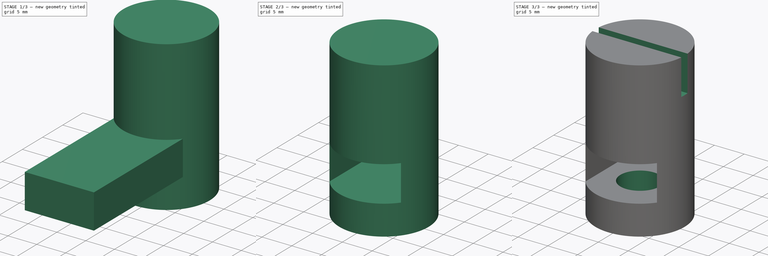
[diagram: build sequence overview — one tinted view per stage of 3, left to right]
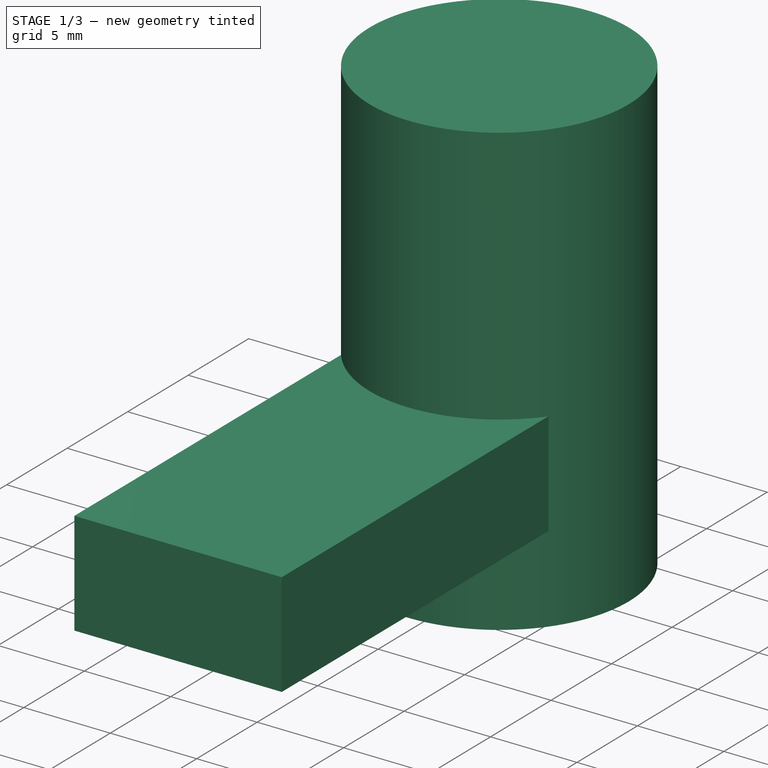
[diagram: stage 1 of 3 — iso view after this stage's code; geometry added in this stage tinted green]
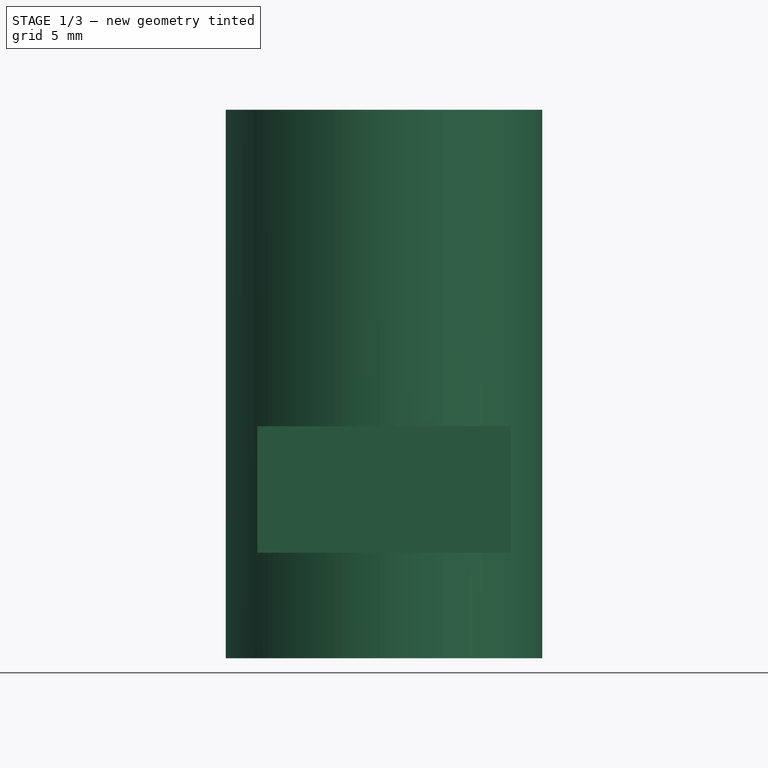
[diagram: stage 1 of 3 — front view after this stage's code; geometry added in this stage tinted green]
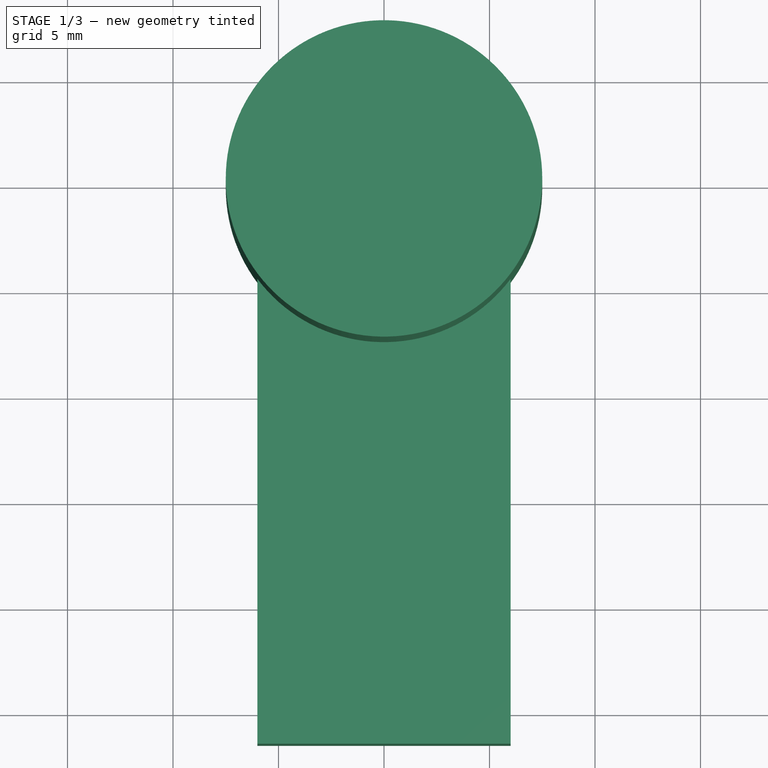
[diagram: stage 1 of 3 — top view after this stage's code; geometry added in this stage tinted green]
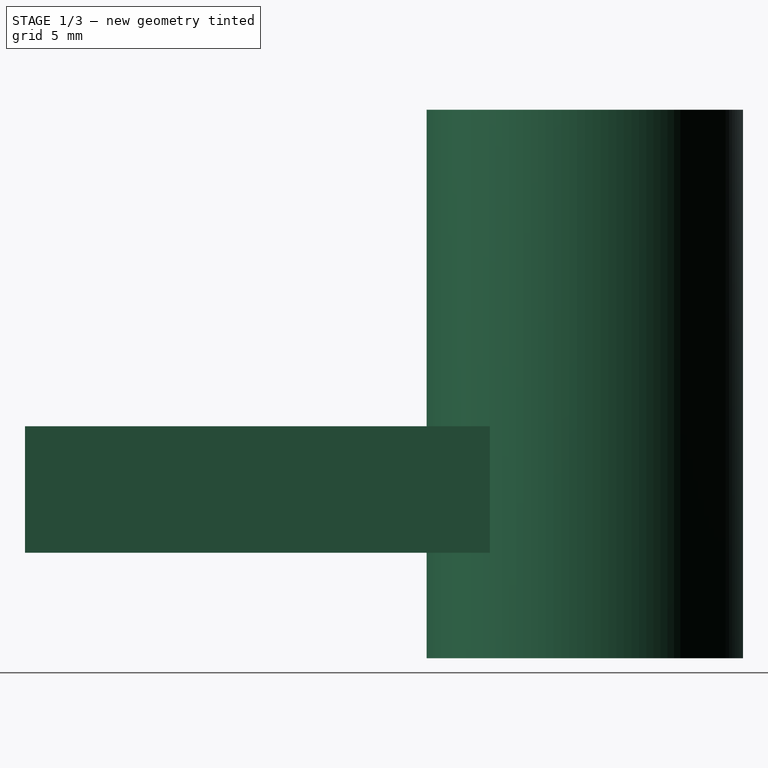
[diagram: stage 1 of 3 — right view after this stage's code; geometry added in this stage tinted green]
FCSTD DOCUMENT  (FreeCAD 0.20R29410 (Git))
Label: Post
License: All rights reserved
LicenseURL: http://en.wikipedia.org/wiki/All_rights_reserved
objects: Sketcher::SketchObject×5, PartDesign::Pad×2, PartDesign::Body×2, PartDesign::Boolean×1, PartDesign::Pocket×1, PartDesign::Hole×1
note: 16 computed .brp shape members not serialized (recipe doc carries the construction recipe); baked Part::Feature solids carry a one-line shape summary decoded from their .brp

FEATURE [Sketcher::SketchObject] Sketch
  FullyConstrained = true
  MapMode = 5
  Support = -> [XY_Plane]
  sketch-geometry (1):
    g0: Circle CenterX=0 CenterY=0 CenterZ=0 NormalX=0 NormalY=0 NormalZ=1 AngleXU=0 Radius=7.5
  constraints (2):
    c: Coincident(g0,g-1)
    c: Diameter(g0) = 15
FEATURE [PartDesign::Pad] Pad
  Direction = (0,0,1)
  Length = 26
  Length2 = 10
  Profile = -> Sketch
  ReferenceAxis = -> Sketch [N_Axis]
  Refine = true
  Type = 0
FEATURE [Sketcher::SketchObject] Sketch001
  FullyConstrained = false
  MapMode = 5
  Placement = pos=(0,0,0) rot=(1,0,0;1.5708rad)
  Support = -> [XZ_Plane]
  sketch-geometry (11):
    g0: LineSegment StartX=0 StartY=0 StartZ=0 EndX=32.1972 EndY=0 EndZ=0
    g1: LineSegment StartX=32.1972 StartY=0 StartZ=0 EndX=32.1972 EndY=13 EndZ=0
    g2: LineSegment StartX=32.1972 StartY=13 StartZ=0 EndX=0 EndY=13 EndZ=0
    g3: LineSegment StartX=0 StartY=13 StartZ=0 EndX=0 EndY=0 EndZ=0
    g4: LineSegment StartX=-57.9469 StartY=36.85 StartZ=0 EndX=59.5862 EndY=36.85 EndZ=0
    g5: LineSegment StartX=15.3904 StartY=48 StartZ=0 EndX=15.3904 EndY=28 EndZ=0
    g6: LineSegment StartX=19.494 StartY=63 StartZ=0 EndX=19.494 EndY=28 EndZ=0
    g7: LineSegment StartX=11.6766 StartY=13 StartZ=0 EndX=22.6698 EndY=13 EndZ=0
    g8: LineSegment StartX=22.6698 StartY=13 StartZ=0 EndX=22.6698 EndY=33 EndZ=0
    g9: LineSegment StartX=22.6698 StartY=33 StartZ=0 EndX=11.6766 EndY=33 EndZ=0
    g10: LineSegment StartX=11.6766 StartY=33 StartZ=0 EndX=11.6766 EndY=13 EndZ=0
  constraints (28):
    c: Coincident(g0,g1)
    c: Coincident(g1,g2)
    c: Coincident(g2,g3)
    c: Coincident(g3,g0)
    c: Horizontal(g0)
    c: Horizontal(g2)
    c: Vertical(g1)
    c: Vertical(g3)
    c: Coincident(g0,g-1)
    c: Distance(g1) = 13
    c: Horizontal(g4)
    c: Distance(g4,g-1) = 36.85  'Beam Height'
    c: Vertical(g5)
    c: DistanceY(g5,g5) = 20
    c: Vertical(g6)
    c: DistanceY(g6,g6) = 35
    c: Coincident(g7,g8)
    c: Coincident(g8,g9)
    c: Coincident(g9,g10)
    c: Coincident(g10,g7)
    c: Horizontal(g7)
    c: Horizontal(g9)
    c: Vertical(g8)
    c: Vertical(g10)
    c: PointOnObject(g7,g2)
    c: DistanceY(g8,g8) = 20
    c: DistanceY(g5,g9) = 5
    c: DistanceY(g6,g8) = 5
FEATURE [Sketcher::SketchObject] Sketch002
  FullyConstrained = true
  MapMode = 5
  Placement = pos=(0,0,5) rot=(0,0,1;0rad)
  sketch-geometry (7):
    g0: LineSegment StartX=6 StartY=3.4641 StartZ=0 EndX=6 EndY=-26.5359 EndZ=0
    g1: LineSegment StartX=6 StartY=-26.5359 StartZ=0 EndX=-6 EndY=-26.5359 EndZ=0
    g2: LineSegment StartX=-6 StartY=-26.5359 StartZ=0 EndX=-6 EndY=3.4641 EndZ=0
    g3: LineSegment StartX=-6 StartY=3.4641 StartZ=0 EndX=0 EndY=6.9282 EndZ=0
    g4: LineSegment StartX=0 StartY=6.9282 StartZ=0 EndX=6 EndY=3.4641 EndZ=0
    g5: LineSegment StartX=6 StartY=-3.4641 StartZ=0 EndX=0 EndY=-6.9282 EndZ=0
    g6: LineSegment StartX=0 StartY=-6.9282 StartZ=0 EndX=-6 EndY=-3.4641 EndZ=0
  constraints (20):
    c: Vertical(g0)
    c: Coincident(g0,g1)
    c: Horizontal(g1)
    c: Coincident(g1,g2)
    c: Vertical(g2)
    c: Coincident(g2,g3)
    c: PointOnObject(g3,g-2)
    c: Coincident(g3,g4)
    c: Coincident(g4,g0)
    c: Angle(g3,g4) = 2.0944
    c: Symmetric(g2,g0,g-2)
    c: DistanceX(g1,g1) = 12
    c: PointOnObject(g5,g0)
    c: Coincident(g6,g5)
    c: PointOnObject(g6,g2)
    c: Angle(g5,g6) = 2.0944
    c: Parallel(g3,g5)
    c: Distance(g3,g5) = 12
    c: Symmetric(g3,g5,g-1)
    c: DistanceY(g0,g0) = 30
FEATURE [PartDesign::Pad] Pad001
  Direction = (0,0,1)
  Length = 6
  Length2 = 10
  Placement = pos=(0,0,5) rot=(0,0,1;0rad)
  Profile = -> Sketch002
  ReferenceAxis = -> Sketch002 [N_Axis]
  Refine = true
  Type = 0
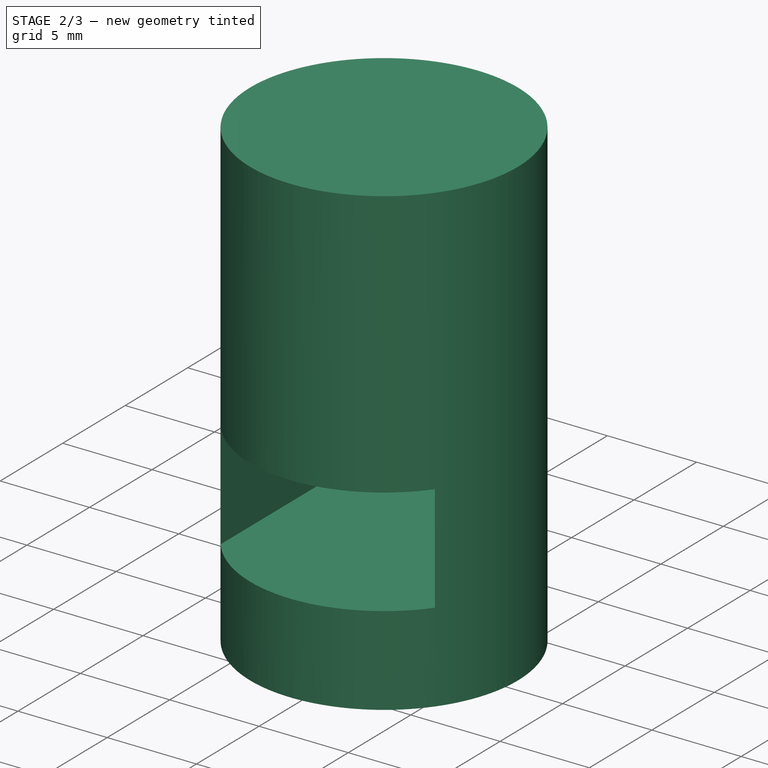
[diagram: stage 2 of 3 — iso view after this stage's code; geometry added in this stage tinted green]
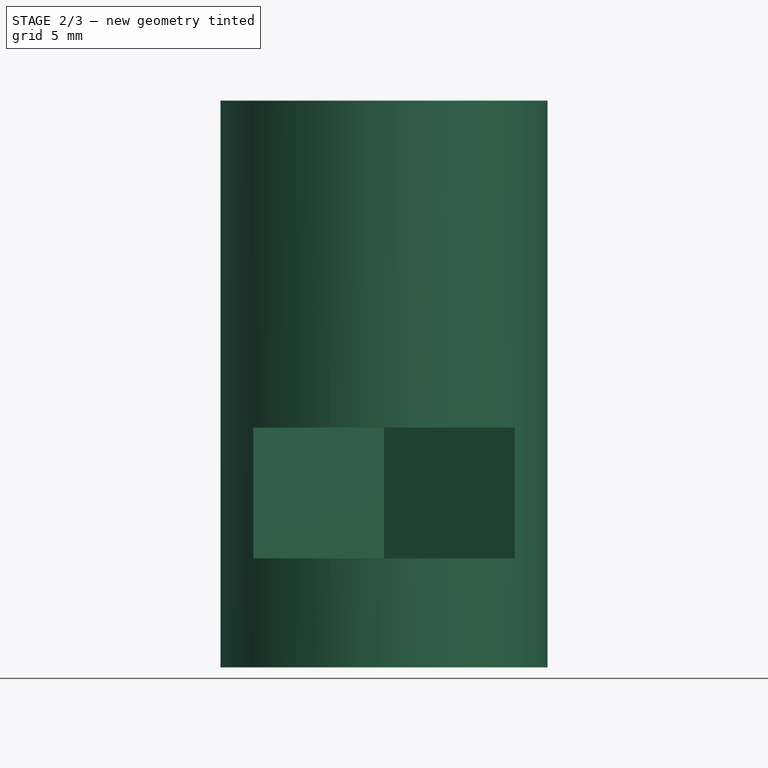
[diagram: stage 2 of 3 — front view after this stage's code; geometry added in this stage tinted green]
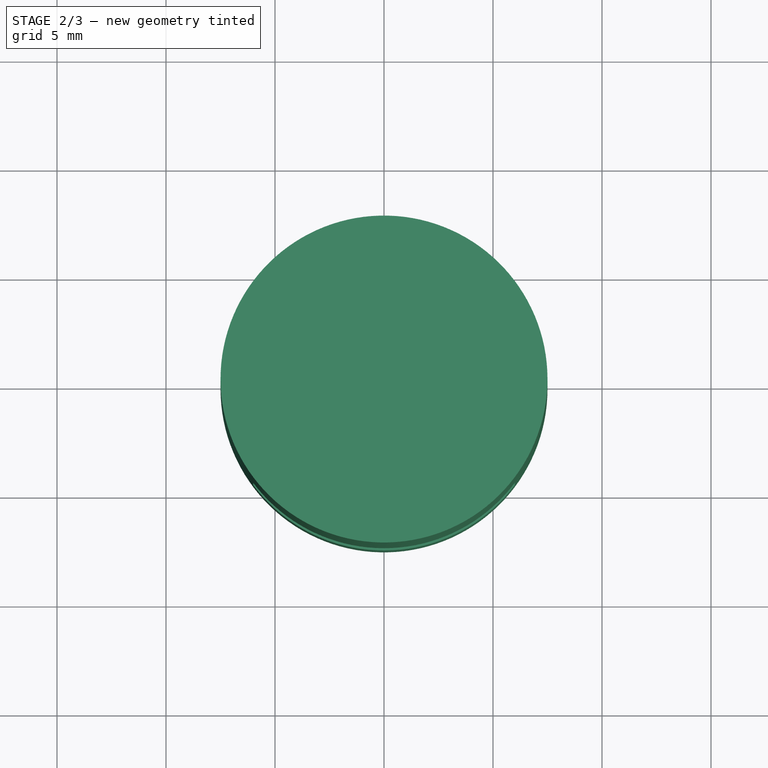
[diagram: stage 2 of 3 — top view after this stage's code; geometry added in this stage tinted green]
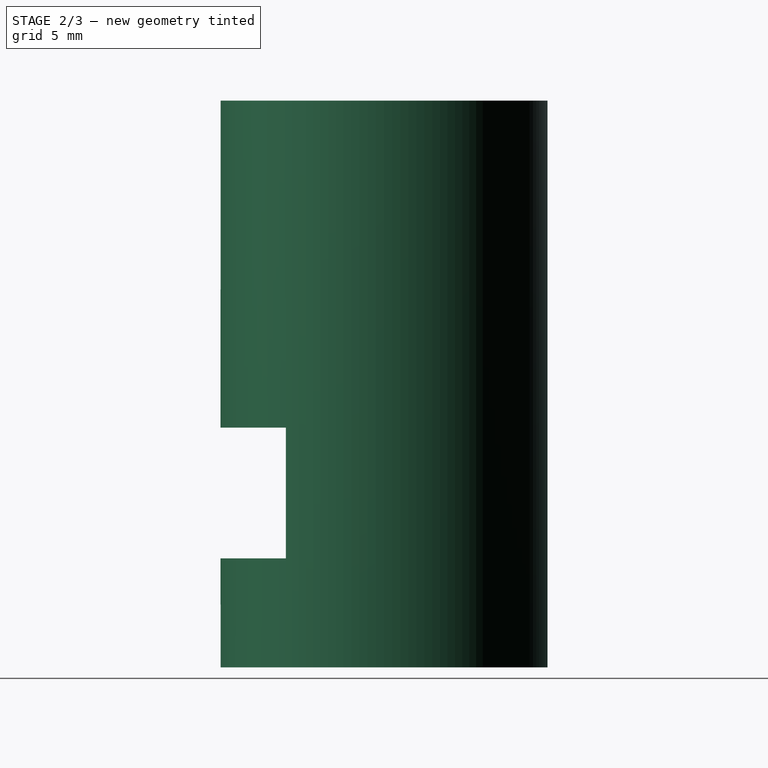
[diagram: stage 2 of 3 — right view after this stage's code; geometry added in this stage tinted green]
FEATURE [PartDesign::Body] Body001
  Group = -> [Sketch002,Pad001]
  Origin = -> Origin001
  Tip = -> Pad001
FEATURE [PartDesign::Boolean] Boolean
  BaseFeature = -> Pad
  Group = -> [Body001]
  Refine = true
  Type = 1
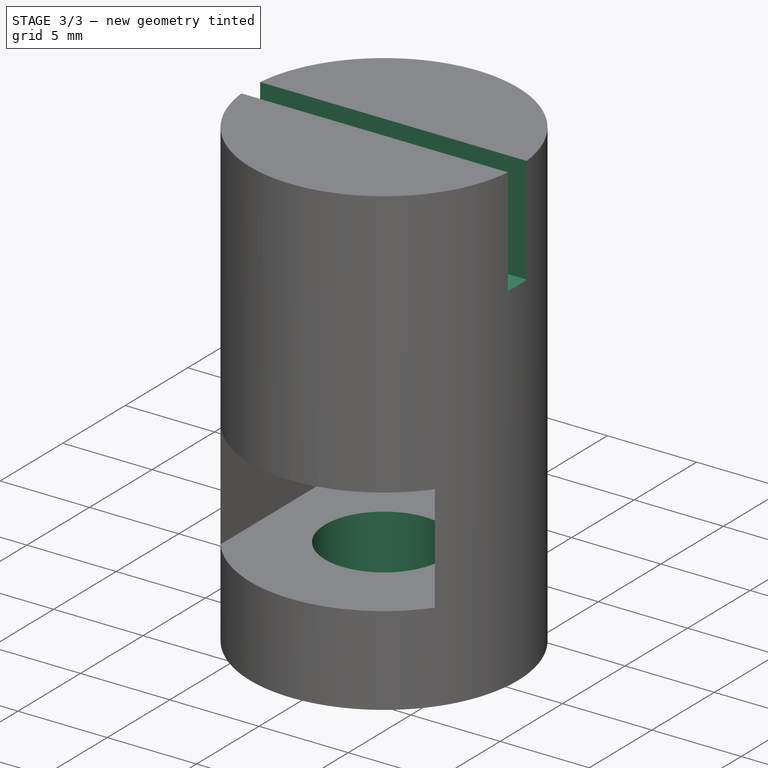
[diagram: stage 3 of 3 — iso view after this stage's code; geometry added in this stage tinted green]
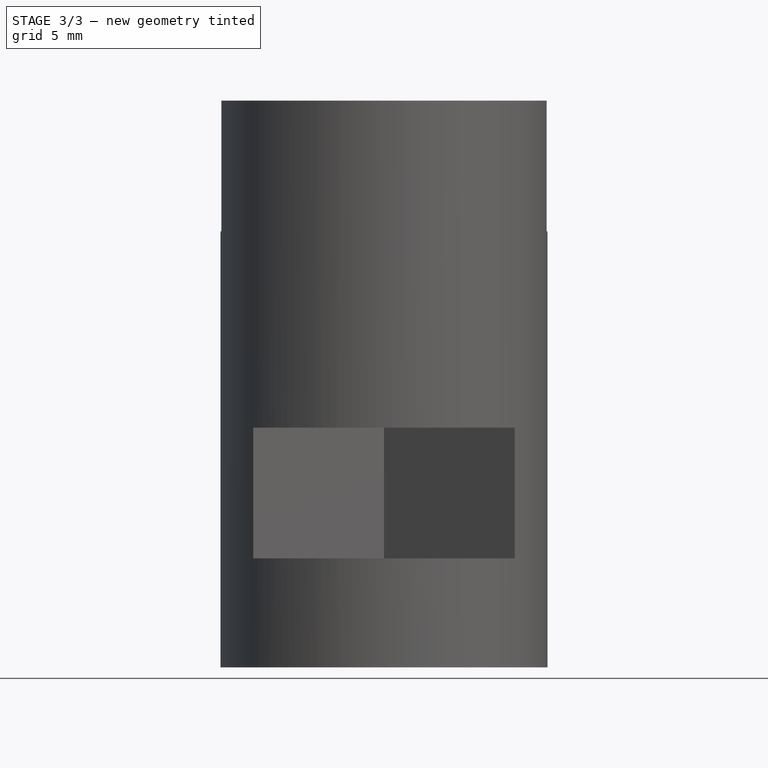
[diagram: stage 3 of 3 — front view after this stage's code; geometry added in this stage tinted green]
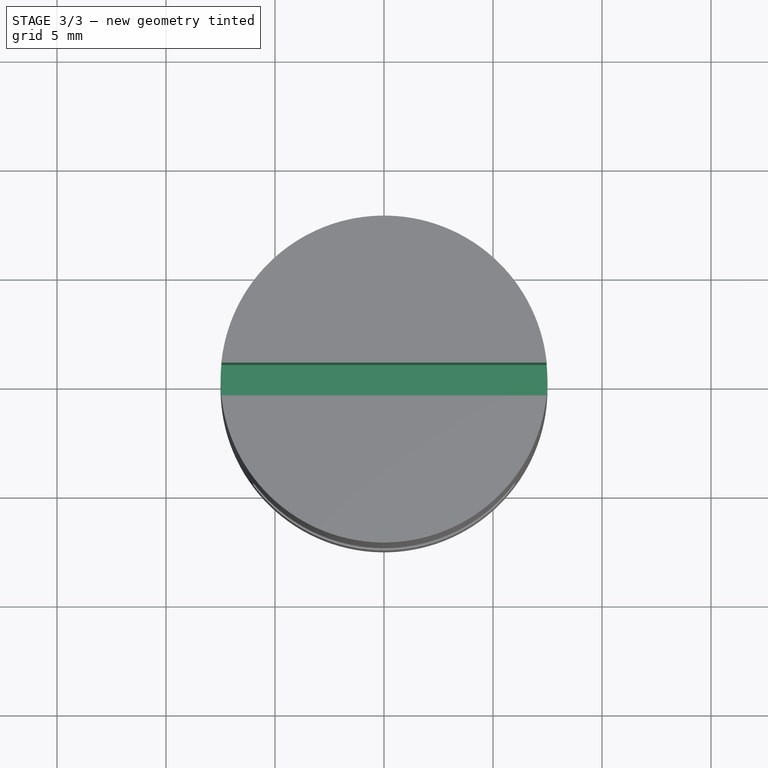
[diagram: stage 3 of 3 — top view after this stage's code; geometry added in this stage tinted green]
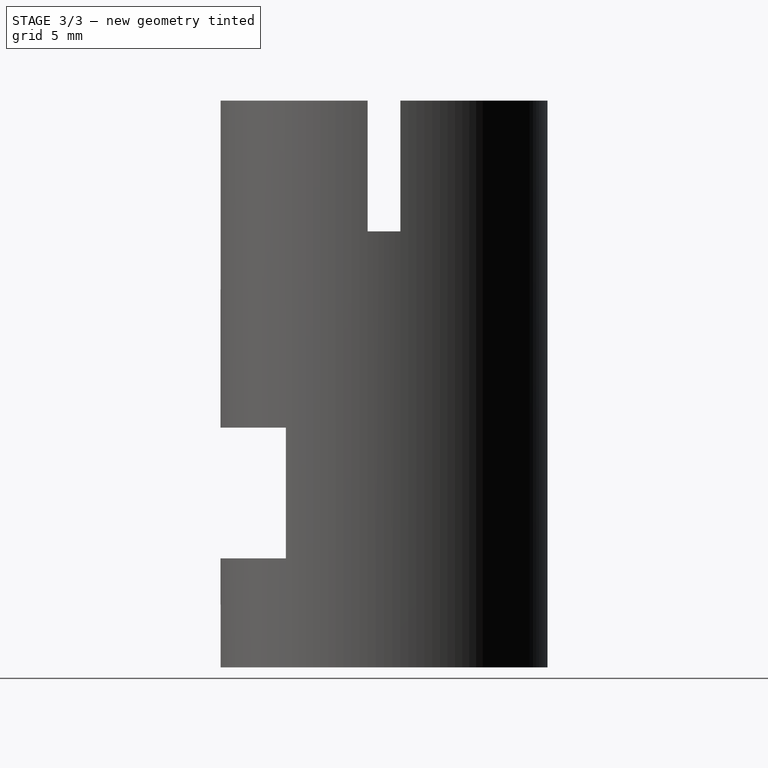
[diagram: stage 3 of 3 — right view after this stage's code; geometry added in this stage tinted green]
FEATURE [Sketcher::SketchObject] Sketch003
  FullyConstrained = true
  MapMode = 5
  Placement = pos=(0,0,26) rot=(0,0,1;0rad)
  Support = -> [Boolean]
  sketch-geometry (4):
    g0: LineSegment StartX=-8.8 StartY=0.75 StartZ=0 EndX=8.8 EndY=0.75 EndZ=0
    g1: LineSegment StartX=8.8 StartY=0.75 StartZ=0 EndX=8.8 EndY=-0.75 EndZ=0
    g2: LineSegment StartX=8.8 StartY=-0.75 StartZ=0 EndX=-8.8 EndY=-0.75 EndZ=0
    g3: LineSegment StartX=-8.8 StartY=-0.75 StartZ=0 EndX=-8.8 EndY=0.75 EndZ=0
  constraints (10):
    c: Coincident(g0,g1)
    c: Coincident(g1,g2)
    c: Coincident(g2,g3)
    c: Coincident(g3,g0)
    c: Horizontal(g2)
    c: Vertical(g1)
    c: DistanceY(g1,g1) = 1.5
    c: DistanceX(g2,g2) = 17.6
    c: Symmetric(g0,g0,g-2)
    c: Symmetric(g0,g2,g-1)
FEATURE [PartDesign::Pocket] Pocket
  BaseFeature = -> Boolean
  Direction = (0,0,-1)
  Length = 6
  Length2 = 5
  Profile = -> Sketch003
  ReferenceAxis = -> Sketch003 [N_Axis]
  Refine = true
  Type = 0
FEATURE [Sketcher::SketchObject] Sketch004
  FullyConstrained = true
  MapMode = 5
  Placement = pos=(0,0,0) rot=(1,0,0;3.14159rad)
  Support = -> [Pocket]
  sketch-geometry (1):
    g0: Circle CenterX=0 CenterY=0 CenterZ=0 NormalX=0 NormalY=0 NormalZ=1 AngleXU=0 Radius=3
  constraints (2):
    c: Coincident(g0,g-1)
    c: Diameter(g0) = 6
FEATURE [PartDesign::Hole] Hole
  BaseFeature = -> Pocket
  CustomThreadClearance = 0
  Depth = 18
  DepthType = 0
  Diameter = 6.6
  DrillForDepth = false
  DrillPoint = 1
  DrillPointAngle = 118
  HoleCutCountersinkAngle = 90
  HoleCutCustomValues = false
  HoleCutDepth = 0
  HoleCutDiameter = 6.7
  HoleCutType = 0
  ModelThread = false
  Profile = -> Sketch004
  Refine = true
  Tapered = false
  TaperedAngle = 90
  ThreadClass = 0
  ThreadDepth = 18
  ThreadDepthType = 0
  ThreadDirection = 0
  ThreadFit = 0
  ThreadSize = 14
  ThreadType = 1
  Threaded = false
  UseCustomThreadClearance = false
FEATURE [PartDesign::Body] Body
  Group = -> [Sketch,Pad,Sketch001,Boolean,Sketch003,Pocket,Sketch004,Hole]
  Origin = -> Origin
  Tip = -> Hole
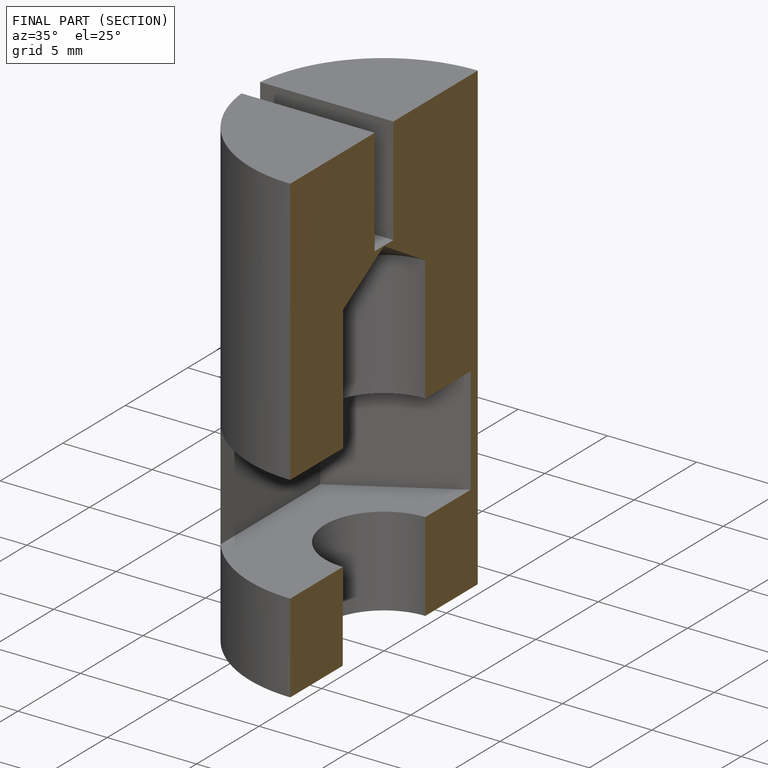
[diagram: finished part — half-section view (interior)]
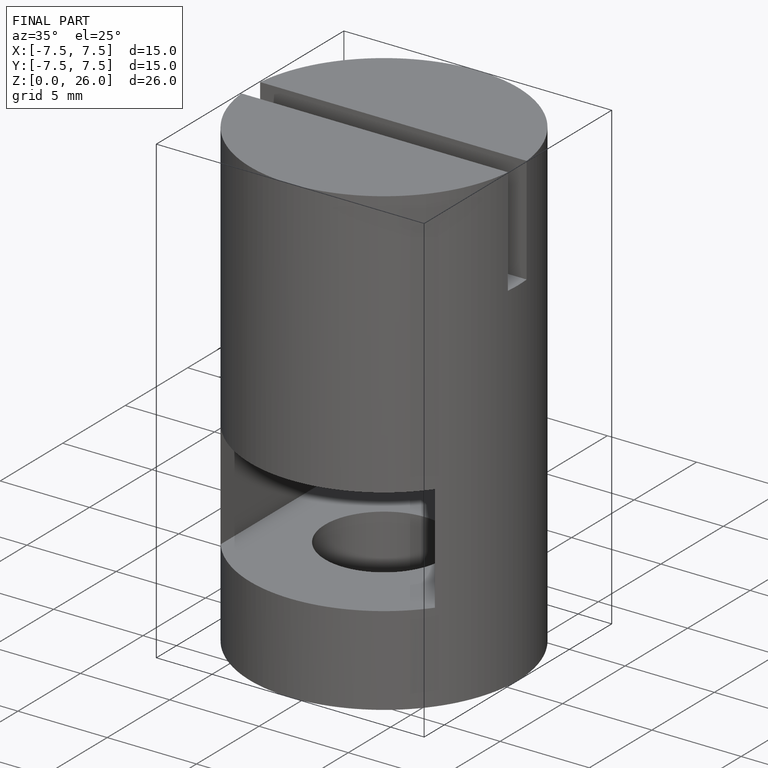
[diagram: finished part — iso view with bounding-box wireframe]
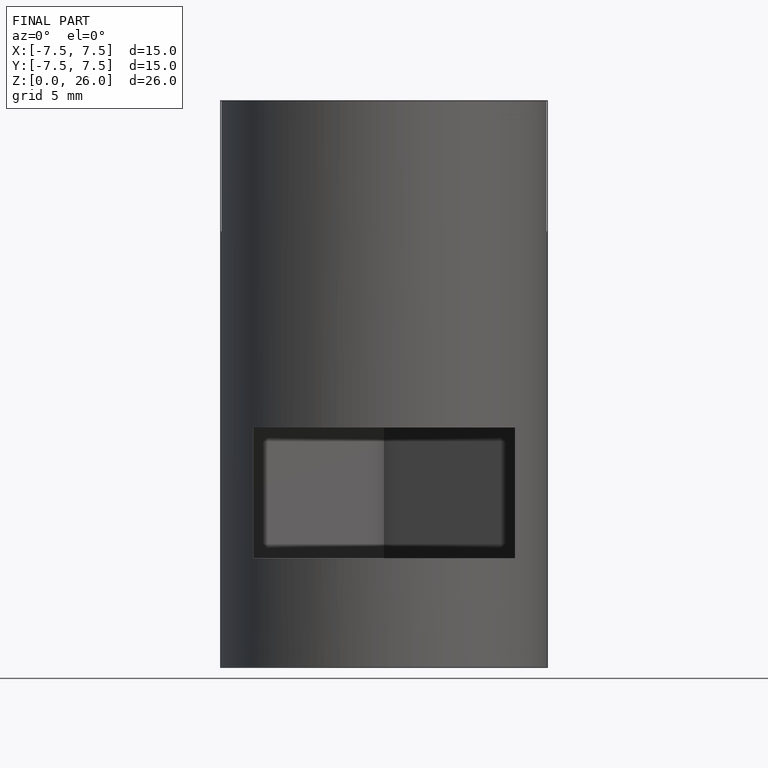
[diagram: finished part — front view with bounding-box wireframe]
